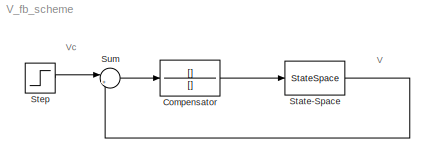
MODEL V_fb_scheme
KIND model
CONFIG AbsTol = auto
CONFIG FixedStep = auto
CONFIG MaxStep = auto
CONFIG MinStep = auto
CONFIG RelTol = 1e-3
CONFIG Solver = ode45
CONFIG SolverMode = Auto
CONFIG StartTime = 0.0
CONFIG StopTime = 10.0
BLOCK [TransferFcn] Compensator
  Denominator = []
  Numerator = []
BLOCK [StateSpace] State-Space
BLOCK [Step] Step
  SampleTime = 0
BLOCK [Sum] Sum
  IconShape = round
  InputSameDT = off
  Inputs = |++
  OutDataTypeMode = Inherit via internal rule
  Ports = [2, 1]
ANNOTATION (root): V
ANNOTATION (root): Vc
LINE Compensator:1 -> State-Space:1
LINE State-Space:1 -> Sum:2
LINE Step:1 -> Sum:1
LINE Sum:1 -> Compensator:1
